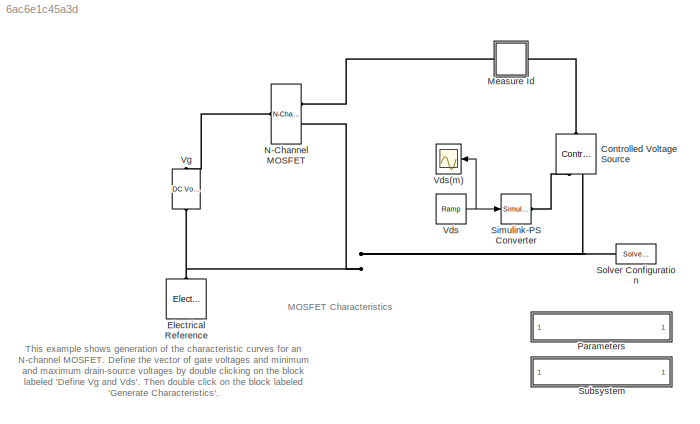
MODEL slx_6ac6e1c45a3d
KIND model
CONFIG PreLoadFcn = Vg = 5;\nVds_min = 0;\nVds_max = 4;\nt_sim = 1;
BLOCK [Reference] Controlled Voltage Source  REF=fl_lib/Electrical/Electrical Sources/Controlled Voltage
Source
  ClassName = controlled_voltage_source
  ComponentPath = foundation.electrical.sources.controlled_voltage
  ComponentVariantNames = controlled_voltage
  ComponentVariants = foundation.electrical.sources.controlled_voltage
  Ports = [0, 0, 0, 0, 0, 1, 2]
  SchemaVersion = 1
  SourceBlock = fl_lib/Electrical/Electrical Sources/Controlled Voltage\nSource
  SourceFile = foundation.electrical.sources.controlled_voltage
  SourceType = Controlled Voltage\nSource
BLOCK [Reference] Electrical Reference  REF=fl_lib/Electrical/Electrical Elements/Electrical Reference
  ClassName = reference_electrical
  ComponentPath = foundation.electrical.elements.reference
  ComponentVariantNames = reference
  ComponentVariants = foundation.electrical.elements.reference
  Ports = [0, 0, 0, 0, 0, 1]
  SchemaVersion = 1
  SourceBlock = fl_lib/Electrical/Electrical Elements/Electrical Reference
  SourceFile = foundation.electrical.elements.reference
  SourceType = Electrical Reference
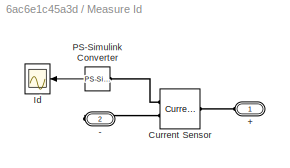
BLOCK [SubSystem] Measure Id
  Ports = [0, 0, 0, 0, 0, 1, 1]
  RequestExecContextInheritance = off
BLOCK [PMIOPort] Measure Id/+
  Port = 1
  Side = Left
BLOCK [PMIOPort] Measure Id/-
  Port = 2
  Side = Right
BLOCK [Reference] Measure Id/Current Sensor  REF=fl_lib/Electrical/Electrical Sensors/Current Sensor
  ClassName = sensor_current
  ComponentPath = foundation.electrical.sensors.current
  ComponentVariantNames = current
  ComponentVariants = foundation.electrical.sensors.current
  Ports = [0, 0, 0, 0, 0, 1, 2]
  SchemaVersion = 1
  SourceBlock = fl_lib/Electrical/Electrical Sensors/Current Sensor
  SourceFile = foundation.electrical.sensors.current
  SourceType = Current Sensor
BLOCK [Scope] Measure Id/Id
  DataFormat = StructureWithTime
  Floating = off
  NumInputPorts = 1
  Ports = [1]
  SampleTime = 0
  SaveName = Id
  SaveToWorkspace = on
  ShowLegends = off
  TimeRange = 1
  YMax = 30
  YMin = 0
BLOCK [Reference] Measure Id/PS-Simulink Converter  REF=nesl_utility/PS-Simulink
Converter
  AffineConversion = off
  Frequencies = []
  LeftPortType = input
  PhysicalDomain = network_engine_domain
  Ports = [0, 1, 0, 0, 0, 1]
  PseudoPeriodic = off
  RightPortType = output
  SourceBlock = nesl_utility/PS-Simulink\nConverter
  SourceType = PS-Simulink\nConverter
  SubClassName = ps_output
  Unit = 1
BLOCK [Reference] N-Channel MOSFET  REF=elec_lib/Semiconductor
Devices/N-Channel MOSFET
  BEXDatasheet = -1.5
  BEXDatasheet_unit = 1
  BEXEquCoeff = -1.5
  BEXEquCoeff_unit = 1
  Beta = 5
  Beta_unit = A/V^2
  C_GD = 80
  C_GD_unit = pF
  C_GS = 270
  C_GS_unit = pF
  C_OX = 200
  C_OX_unit = pF
  C_iss = 350
  C_iss_unit = pF
  C_oss = 0
  C_oss_unit = pF
  C_param = 1
  C_param_unit = 1
  C_rss = 80
  C_rss_unit = pF
  ClassName = n_mosfet
  ComponentPath = elec.semiconductors.n_mosfet
  ComponentVariantNames = No thermal port, Show thermal port
  ComponentVariants = elec.semiconductors.n_mosfet, elec.semiconductors.n_mosfet_thermal
  Id = 6
  Id_unit = A
  Ports = [0, 0, 0, 0, 0, 1, 2]
  RD = 0.001
  RD_unit = Ohm
  RS = 0.001
  RS_unit = Ohm
  Rds = 0.025
  Rds_T2 = 0.037
  Rds_T2_unit = Ohm
  Rds_unit = Ohm
  Rth = [ 0 10 ]
  Rth_unit = K/W
  SchemaVersion = 1
  SourceBlock = elec_lib/Semiconductor\nDevices/N-Channel MOSFET
  SourceFile = elec.semiconductors.n_mosfet
  SourceType = N-Channel MOSFET
  TdeviceDatasheet = 25
  TdeviceDatasheet_unit = C
  TdeviceEquCoeff = 25
  TdeviceEquCoeff_unit = C
  Tmeas = 25
  Tmeas2 = 125
  Tmeas2_unit = C
  Tmeas_unit = C
  V_C_OX = -0.5
  V_C_OX_unit = V
  Vgs = 10
  Vgs_unit = V
  Vth = 1.7
  Vth_unit = V
  charge_linearity_param = 1
  charge_linearity_param_unit = 1
  dVth_dT = -6
  dVth_dT_unit = mV/K
  lam = 0
  lam_unit = 1/V
  parameterization = 2
  parameterization_unit = 1
  prmDatasheet = 1
  prmDatasheet_unit = 1
  prmEquCoeff = 1
  prmEquCoeff_unit = 1
  thermal_mass = [ 0 1 ]
  thermal_mass_initial_temperatures = [ 25 25 ]
  thermal_mass_initial_temperatures_unit = C
  thermal_mass_parameterization = 1
  thermal_mass_parameterization_unit = 1
  thermal_mass_unit = J/K
  thermal_time_constant = [ 0 10 ]
  thermal_time_constant_unit = s
BLOCK [SubSystem] Parameters
  Ports = []
  RequestExecContextInheritance = off
BLOCK [Reference] Simulink-PS Converter  REF=nesl_utility/Simulink-PS
Converter
  AffineConversion = off
  Frequencies = []
  InputFilterTimeConstant = .001
  InputFiltering = off
  LeftPortType = input
  NoiseDistribution = none
  NoiseParameters = []
  PhysicalDomain = network_engine_domain
  Ports = [1, 0, 0, 0, 0, 0, 1]
  PseudoPeriodic = off
  RightPortType = output
  SimscapeFilterOrder = 1
  SourceBlock = nesl_utility/Simulink-PS\nConverter
  SourceType = Simulink-PS\nConverter
  SubClassName = ps_input
  UdotUserProvided = 0
  Unit = 1
BLOCK [Reference] Solver Configuration  REF=nesl_utility/Solver
Configuration
  AbsTol = 1e-06
  Accelerate = off
  AutomaticFiltering = on
  DelaysMemoryBudget = 1024
  DoDC = on
  DoFixedCost = off
  EnableSwitchedLinearOptims = on
  FilteringTimeConstant = 0.001
  FrequencyDomain = off
  Harmonics = []
  LeftPortType = input
  LinearAlgebra = Sparse
  LocalSolverChoice = NE_BACKWARD_EULER_ADVANCER
  LocalSolverSampleTime = .001
  MaxModeIter = 2
  MaxNonlinIter = 3
  MinStep = 1e-09
  PhysicalDomain = network_engine_domain
  Ports = [0, 0, 0, 0, 0, 0, 1]
  Profile = off
  RelTol = 0.001
  ResidualTolerance = 1e-9
  RightPortType = generic
  SimulateNoise = off
  SourceBlock = nesl_utility/Solver\nConfiguration
  SourceType = Solver\nConfiguration
  SubClassName = solver
  ToWorkspace = off
  Tones = []
  UseCCode = off
  UseLocalSampling = off
  UseLocalSolver = off
BLOCK [SubSystem] Subsystem
  OpenFcn = elec_mosfet_callback
  Ports = []
  RequestExecContextInheritance = off
BLOCK [Reference] Vds  REF=simulink/Sources/Ramp
  Ports = [0, 1]
  SourceBlock = simulink/Sources/Ramp
  SourceType = Ramp
  VectorParams1D = on
  X0 = Vds_min
  slope = (Vds_max-Vds_min)/t_sim
  start = 0
BLOCK [Scope] Vds(m)
  DataFormat = StructureWithTime
  Floating = off
  NumInputPorts = 1
  Ports = [1]
  SampleTime = 0
  SaveName = Vds
  SaveToWorkspace = on
  ShowLegends = off
  TimeRange = 1
  YMax = 4
  YMin = 0
BLOCK [Reference] Vg  REF=fl_lib/Electrical/Electrical Sources/DC Voltage Source
  ClassName = dc_voltage_source
  ComponentPath = foundation.electrical.sources.dc_voltage
  ComponentVariantNames = dc_voltage
  ComponentVariants = foundation.electrical.sources.dc_voltage
  Ports = [0, 0, 0, 0, 0, 1, 1]
  SchemaVersion = 1
  SourceBlock = fl_lib/Electrical/Electrical Sources/DC Voltage Source
  SourceFile = foundation.electrical.sources.dc_voltage
  SourceType = DC Voltage Source
  v0 = Vg
  v0_unit = V
ANNOTATION (root): MOSFET Characteristics
ANNOTATION (root): This example shows generation of the characteristic curves for an N-channel MOSFET. Define the vector of gate voltages and minimum and maximum drain-source voltages by double clicking on the block labeled 'Define Vg and Vds'. Then double click on the block labeled 'Generate Characteristics'.
LINE Measure Id/PS-Simulink Converter:1 -> Measure Id/Id:1
NET Vds:1 -> Simulink-PS Converter:1, Vds(m):1
PLINE Controlled Voltage Source:LConn1 -- Measure Id:LConn1
PLINE Controlled Voltage Source:RConn1 -- Simulink-PS Converter:RConn1
PNET net1: Controlled Voltage Source:RConn2 -- Electrical Reference:LConn1 -- N-Channel MOSFET:RConn2 -- Solver Configuration:RConn1 -- Vg:RConn1
PLINE Measure Id/+:RConn1 -- Measure Id/Current Sensor:LConn1
PLINE Measure Id/-:RConn1 -- Measure Id/Current Sensor:RConn2
PLINE Measure Id/Current Sensor:RConn1 -- Measure Id/PS-Simulink Converter:LConn1
PLINE Measure Id:RConn1 -- N-Channel MOSFET:RConn1
PLINE N-Channel MOSFET:LConn1 -- Vg:LConn1
note: NET lines group one-source signal fan-out (src -> all destinations, sorted); 1:1 wires keep LINE; PNET lines group multi-terminal physical nets as a canonical sorted terminal list (undirected conserving connections); 2-terminal nets keep the pairwise PLINE form
